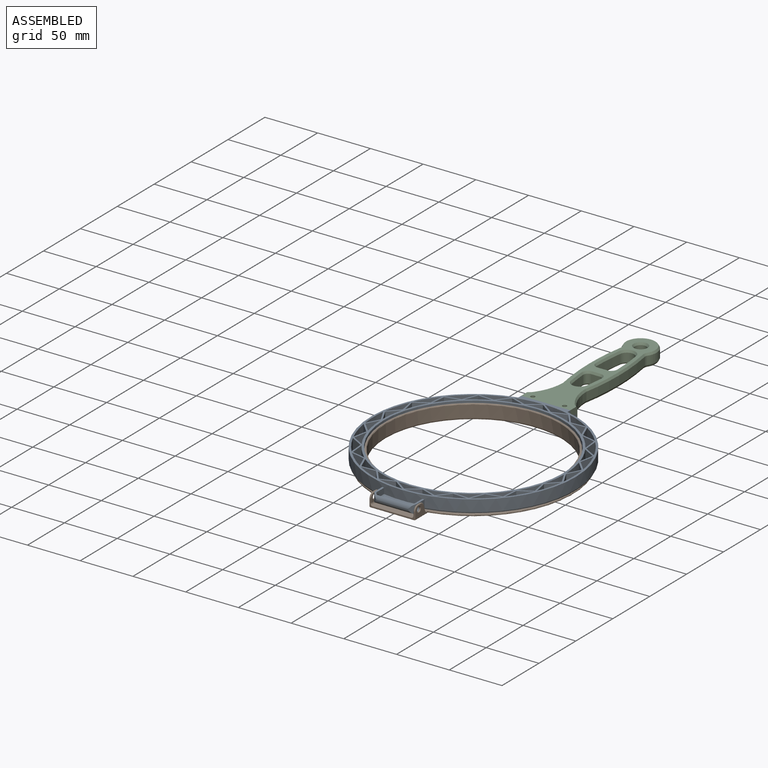
[diagram: assembled view]
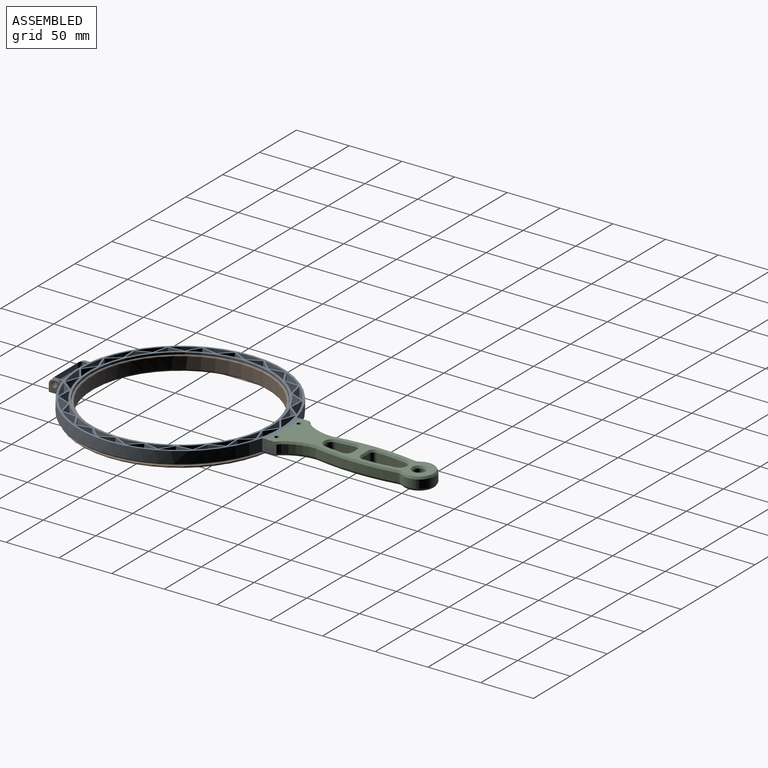
[diagram: assembled view, second angle]
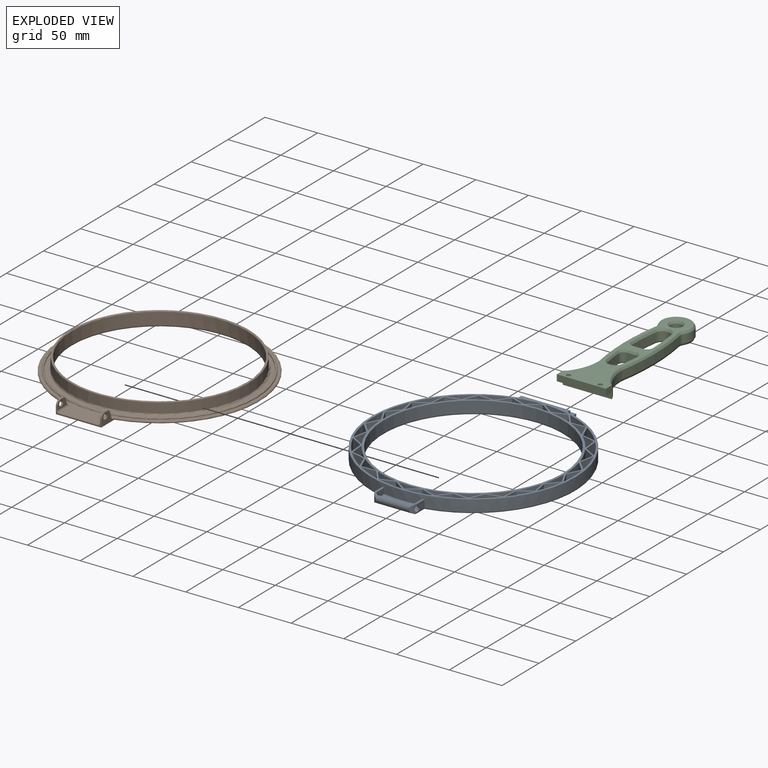
[diagram: exploded view]
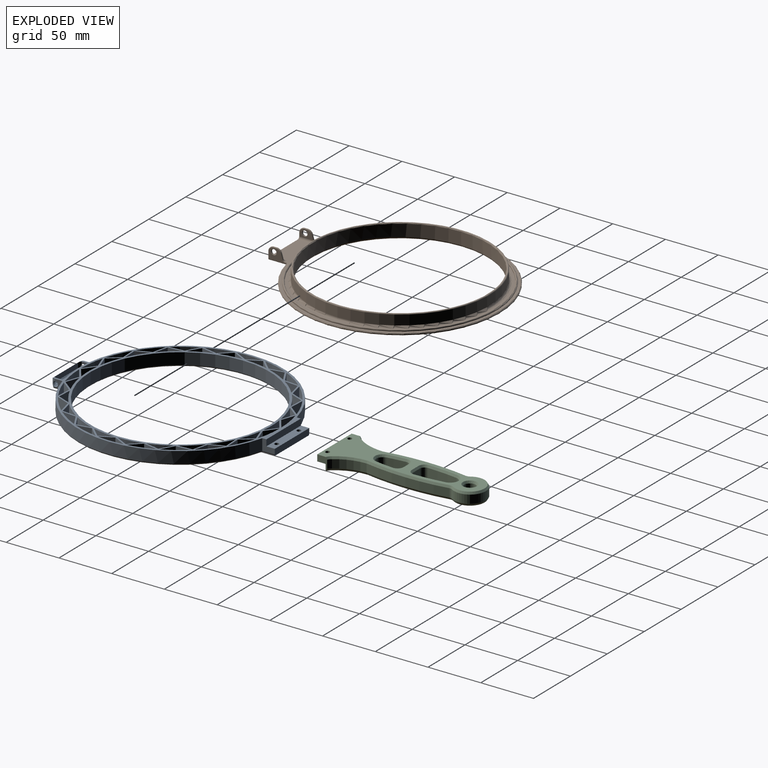
[diagram: exploded view, second angle]
ASSEMBLY  parts=3 mates=2
PART A: 220 faces, bbox 194.1x216.2x12.1 mm
  f0: plane 22.26x10.87mm, normal (0,0,1), area 90.8mm2, adj f3,f212,f213
  f1: plane 18.17x12.36mm, normal (0,0,1), area 74mm2, adj f6,f206,f211
  f2: cylinder r=87mm len=20.72mm, axis (0,0,1), area 216.5mm2, adj f5,f93,f127,f210
  f3: cylinder r=95mm len=22.26mm, axis (0,0,1), area 245.3mm2, adj f0,f93,f212,f213
  f4: plane 18.49x16.02mm, normal (0,0,1), area 90.8mm2, adj f7,f208,f209
  f5: plane 20.72x10.48mm, normal (0,0,1), area 74mm2, adj f2,f127,f210
  f6: cylinder r=87mm len=18.17mm, axis (0,0,1), area 216.5mm2, adj f1,f93,f206,f211
  f7: cylinder r=95mm len=18.49mm, axis (0,0,1), area 245.3mm2, adj f4,f93,f208,f209
  f8: plane 20.58x13.23mm, normal (0,0,1), area 90.8mm2, adj f11,f204,f205
  f9: plane 16.32x14.14mm, normal (0,0,1), area 74mm2, adj f10,f202,f207
  f10: cylinder r=87mm len=16.32mm, axis (0,0,1), area 216.5mm2, adj f9,f93,f202,f207
  f11: cylinder r=95mm len=20.58mm, axis (0,0,1), area 245.3mm2, adj f8,f93,f204,f205
  f12: plane 23.48x9.55mm, normal (0,0,1), area 90.8mm2, adj f15,f200,f201
  f13: plane 19.65x11.54mm, normal (0,0,1), area 74mm2, adj f14,f198,f203
  f14: cylinder r=87mm len=19.65mm, axis (0,0,1), area 216.5mm2, adj f13,f93,f198,f203
  f15: cylinder r=95mm len=23.48mm, axis (0,0,1), area 245.3mm2, adj f12,f93,f200,f201
  f16: plane 24.47x7.15mm, normal (0,0,1), area 90.8mm2, adj f19,f196,f197
  f17: plane 21.38x9.21mm, normal (0,0,1), area 74mm2, adj f18,f194,f199
  f18: cylinder r=87mm len=21.38mm, axis (0,0,1), area 216.5mm2, adj f17,f93,f194,f199
  f19: cylinder r=95mm len=24.47mm, axis (0,0,1), area 245.3mm2, adj f16,f93,f196,f197
  f20: plane 23.48x9.55mm, normal (0,0,1), area 90.8mm2, adj f23,f192,f193
  f21: plane 21.38x9.21mm, normal (0,0,1), area 74mm2, adj f22,f190,f195
  f22: cylinder r=87mm len=21.38mm, axis (0,0,1), area 216.5mm2, adj f21,f93,f190,f195
  f23: cylinder r=95mm len=23.48mm, axis (0,0,1), area 245.3mm2, adj f20,f93,f192,f193
  f24: plane 20.58x13.23mm, normal (0,0,1), area 90.8mm2, adj f27,f188,f189
  f25: plane 19.65x11.54mm, normal (0,0,1), area 74mm2, adj f26,f186,f191
  f26: cylinder r=87mm len=19.65mm, axis (0,0,1), area 216.5mm2, adj f25,f93,f186,f191
  f27: cylinder r=95mm len=20.58mm, axis (0,0,1), area 245.3mm2, adj f24,f93,f188,f189
  f28: plane 18.49x16.02mm, normal (0,0,1), area 90.8mm2, adj f31,f184,f185
  f29: plane 16.32x14.14mm, normal (0,0,1), area 74mm2, adj f30,f182,f187
  f30: cylinder r=87mm len=16.32mm, axis (0,0,1), area 216.5mm2, adj f29,f93,f182,f187
  f31: cylinder r=95mm len=18.49mm, axis (0,0,1), area 245.3mm2, adj f28,f93,f184,f185
  f32: plane 22.26x10.87mm, normal (0,0,1), area 90.8mm2, adj f35,f180,f181
  f33: plane 18.17x12.36mm, normal (0,0,1), area 74mm2, adj f34,f178,f183
  f34: cylinder r=87mm len=18.17mm, axis (0,0,1), area 216.5mm2, adj f33,f93,f178,f183
  f35: cylinder r=95mm len=22.26mm, axis (0,0,1), area 245.3mm2, adj f32,f93,f180,f181
  f36: plane 24.22x8.04mm, normal (0,0,1), area 90.8mm2, adj f39,f176,f177
  f37: plane 20.72x10.48mm, normal (0,0,1), area 74mm2, adj f38,f174,f179
  f38: cylinder r=87mm len=20.72mm, axis (0,0,1), area 216.5mm2, adj f37,f93,f174,f179
  f39: cylinder r=95mm len=24.22mm, axis (0,0,1), area 245.3mm2, adj f36,f93,f176,f177
  f40: plane 24.22x8.04mm, normal (0,0,1), area 90.8mm2, adj f43,f172,f173
  f41: plane 21.6x7.75mm, normal (0,0,1), area 74mm2, adj f42,f170,f175
  f42: cylinder r=87mm len=21.6mm, axis (0,0,1), area 216.5mm2, adj f41,f93,f170,f175
  f43: cylinder r=95mm len=24.22mm, axis (0,0,1), area 245.3mm2, adj f40,f93,f172,f173
  f44: plane 22.26x10.87mm, normal (0,0,1), area 90.8mm2, adj f47,f168,f169
  f45: plane 20.72x10.48mm, normal (0,0,1), area 74mm2, adj f46,f166,f171
  f46: cylinder r=87mm len=20.72mm, axis (0,0,1), area 216.5mm2, adj f45,f93,f166,f171
  f47: cylinder r=95mm len=22.26mm, axis (0,0,1), area 245.3mm2, adj f44,f93,f168,f169
  f48: plane 18.49x16.02mm, normal (0,0,1), area 90.8mm2, adj f51,f164,f165
  f49: plane 18.17x12.36mm, normal (0,0,1), area 74mm2, adj f50,f162,f167
  f50: cylinder r=87mm len=18.17mm, axis (0,0,1), area 216.5mm2, adj f49,f93,f162,f167
  f51: cylinder r=95mm len=18.49mm, axis (0,0,1), area 245.3mm2, adj f48,f93,f164,f165
  f52: plane 20.58x13.23mm, normal (0,0,1), area 90.8mm2, adj f55,f160,f161
  f53: plane 16.32x14.14mm, normal (0,0,1), area 74mm2, adj f54,f158,f163
  f54: cylinder r=87mm len=16.32mm, axis (0,0,1), area 216.5mm2, adj f53,f93,f158,f163
  f55: cylinder r=95mm len=20.58mm, axis (0,0,1), area 245.3mm2, adj f52,f93,f160,f161
  f56: plane 23.48x9.55mm, normal (0,0,1), area 90.8mm2, adj f59,f156,f157
  f57: plane 19.65x11.54mm, normal (0,0,1), area 74mm2, adj f58,f154,f159
  f58: cylinder r=87mm len=19.65mm, axis (0,0,1), area 216.5mm2, adj f57,f93,f154,f159
  f59: cylinder r=95mm len=23.48mm, axis (0,0,1), area 245.3mm2, adj f56,f93,f156,f157
  f60: plane 24.47x7.15mm, normal (0,0,1), area 90.8mm2, adj f63,f152,f153
  f61: plane 21.38x9.21mm, normal (0,0,1), area 74mm2, adj f62,f150,f155
  f62: cylinder r=87mm len=21.38mm, axis (0,0,1), area 216.5mm2, adj f61,f93,f150,f155
  f63: cylinder r=95mm len=24.47mm, axis (0,0,1), area 245.3mm2, adj f60,f93,f152,f153
  f64: plane 23.48x9.55mm, normal (0,0,1), area 90.8mm2, adj f67,f148,f149
  f65: plane 21.38x9.21mm, normal (0,0,1), area 74mm2, adj f66,f146,f151
  f66: cylinder r=87mm len=21.38mm, axis (0,0,1), area 216.5mm2, adj f65,f93,f146,f151
  f67: cylinder r=95mm len=23.48mm, axis (0,0,1), area 245.3mm2, adj f64,f93,f148,f149
  f68: plane 20.58x13.23mm, normal (0,0,1), area 90.8mm2, adj f71,f144,f145
  f69: plane 19.65x11.54mm, normal (0,0,1), area 74mm2, adj f70,f142,f147
  f70: cylinder r=87mm len=19.65mm, axis (0,0,1), area 216.5mm2, adj f69,f93,f142,f147
  f71: cylinder r=95mm len=20.58mm, axis (0,0,1), area 245.3mm2, adj f68,f93,f144,f145
  f72: plane 18.49x16.02mm, normal (0,0,1), area 90.8mm2, adj f75,f140,f141
  f73: plane 16.32x14.14mm, normal (0,0,1), area 74mm2, adj f74,f138,f143
  f74: cylinder r=87mm len=16.32mm, axis (0,0,1), area 216.5mm2, adj f73,f93,f138,f143
  f75: cylinder r=95mm len=18.49mm, axis (0,0,1), area 245.3mm2, adj f72,f93,f140,f141
  f76: plane 22.26x10.87mm, normal (0,0,1), area 90.8mm2, adj f79,f136,f137
  f77: plane 18.17x12.36mm, normal (0,0,1), area 74mm2, adj f78,f134,f139
  f78: cylinder r=87mm len=18.17mm, axis (0,0,1), area 216.5mm2, adj f77,f93,f134,f139
  f79: cylinder r=95mm len=22.26mm, axis (0,0,1), area 245.3mm2, adj f76,f93,f136,f137
  f80: plane 24.22x8.04mm, normal (0,0,1), area 90.8mm2, adj f82,f132,f133
  f81: plane 20.72x10.48mm, normal (0,0,1), area 74mm2, adj f83,f130,f135
  f82: cylinder r=95mm len=24.22mm, axis (0,0,1), area 245.3mm2, adj f80,f93,f132,f133
  f83: cylinder r=87mm len=20.72mm, axis (0,0,1), area 216.5mm2, adj f81,f93,f130,f135
  f84: plane 21.6x7.75mm, normal (0,0,1), area 74mm2, adj f96,f126,f131
  f85: plane 10.74x2mm, normal (0,0,1), area 21mm2, adj f86,f88,f97,f113,f124
  f86: plane 10.8x5.43mm, normal (1,0,0), area 45.9mm2, adj f85,f88,f102,f109,f119,f124
  f87: plane 46.65x6mm, normal (0,1,0), area 279.9mm2, adj f93,f103,f104,f105
  f88: cylinder r=97mm len=194mm, axis (0,0,1), area 6083.2mm2, adj f85,f86,f93,f97,f98,f99,f101,f103
  f89: plane 34x1.12mm, normal (0,0,1), area 38mm2, adj f102,f118,f122,f123
  f90: plane 34x6.49mm, normal (0,0,1), area 186.8mm2, adj f102,f119,f120,f121
  f91: cylinder r=85mm len=170mm, axis (0,0,1), area 5853.8mm2, adj f93,f125
  f92: plane 211.62x192.85mm, normal (0,0,-1), area 7023.2mm2, adj f106,f107,f108,f117,f125,f214,f215,f216
  f93: plane 195x194mm, normal (0,0,1), area 3327.4mm2, adj f2,f3,f6,f7,f10,f11,f14,f15
  f94: cylinder r=95mm len=24.22mm, axis (0,0,1), area 245.3mm2, adj f93,f95,f128,f129
  f95: plane 24.22x8.04mm, normal (0,0,1), area 90.8mm2, adj f94,f128,f129
  f96: cylinder r=87mm len=21.6mm, axis (0,0,1), area 216.5mm2, adj f84,f93,f126,f131
  f97: plane 9.75x7.43mm, normal (-1,0,0), area 61.8mm2, adj f85,f88,f102,f113,f219
  f98: plane 9.75x7.43mm, normal (1,0,0), area 61.8mm2, adj f88,f101,f102,f116,f216
  f99: plane 10.8x5.43mm, normal (-1,0,0), area 45.9mm2, adj f88,f101,f102,f110,f121,f124
  f100: plane 32x4.69mm, normal (0,1,0), area 150.2mm2, adj f109,f110,f122,f124
  f101: plane 10.74x2mm, normal (0,0,1), area 21mm2, adj f88,f98,f99,f116,f124
  f102: cylinder r=2.5mm len=40mm, axis (1,0,0), area 179.3mm2, adj f86,f89,f90,f97,f98,f99,f109,f110
  f103: plane 11.85x11mm, normal (-1,0,0), area 82.3mm2, adj f87,f88,f93,f105,f106,f217
  f104: plane 11.85x11mm, normal (1,0,0), area 82.3mm2, adj f87,f88,f93,f105,f106,f214
  f105: plane 46.65x8mm, normal (0,0,1), area 348.1mm2, adj f87,f103,f104,f106,f107,f108
  f106: plane 46.65x6mm, normal (0,1,0), area 279.3mm2, adj f92,f103,f104,f105,f214,f217
  f107: cylinder r=2mm len=6mm, axis (0,0,1), area 75.4mm2, adj f92,f105
  f108: cylinder r=2mm len=6mm, axis (0,0,1), area 75.4mm2, adj f92,f105
  f109: plane 6.49x2.09mm, normal (0.71,0.71,0), area 12.9mm2, adj f86,f100,f102,f122,f123,f124
  f110: plane 6.49x2.09mm, normal (-0.71,0.71,0), area 12.9mm2, adj f99,f100,f102,f118,f122,f124
  f111: plane 7.91x1.95mm, normal (0.71,-0.71,0), area 18.8mm2, adj f114,f116,f117,f124
  f112: plane 7.91x1.95mm, normal (-0.71,-0.71,0), area 18.8mm2, adj f113,f115,f117,f124
  f113: cylinder r=3.5mm len=8.34mm, axis (0,0,1), area 11.9mm2, adj f85,f97,f102,f112,f117,f124,f219
  f114: cylinder r=3.5mm len=5.19mm, axis (0,0,-1), area 7mm2, adj f111,f117,f124
  f115: cylinder r=3.5mm len=5.19mm, axis (0,0,-1), area 7mm2, adj f112,f117,f124
  f116: cylinder r=3.5mm len=8.34mm, axis (0,0,-1), area 11.9mm2, adj f98,f101,f102,f111,f117,f124,f216
  f117: cylinder r=4.5mm len=38.95mm, axis (1,0,0), area 245.1mm2, adj f92,f111,f112,f113,f114,f115,f116,f124
  f118: plane 1.16x0.61mm, normal (-0.71,0,0.71), area 0.4mm2, adj f89,f102,f110
  f119: plane 7.79x1.1mm, normal (0.71,0,0.71), area 9.4mm2, adj f86,f90,f102,f120
  f120: cone r=97mm half-angle=45deg, axis (0,0,-1), area 49.8mm2, adj f88,f90,f119,f121
  f121: plane 7.79x1.1mm, normal (-0.71,0,0.71), area 9.4mm2, adj f90,f99,f102,f120
  f122: plane 34x1mm, normal (0,0.71,0.71), area 46.7mm2, adj f89,f100,f109,f110
  f123: plane 1.16x0.61mm, normal (0.71,0,0.71), area 0.4mm2, adj f89,f102,f109
  f124: cylinder r=4.5mm len=39.72mm, axis (1,0,0), area 138.2mm2, adj f85,f86,f99,f100,f101,f109,f110,f111
  f125: cone r=85.6mm half-angle=30deg, axis (0,0,-1), area 643.1mm2, adj f91,f92
  f126: plane 10.8x10mm, normal (-0.58,-0.81,0), area 132.9mm2, adj f84,f93,f96,f131
  f127: plane 12.54x10mm, normal (0.33,-0.94,0), area 132.9mm2, adj f2,f5,f93,f210
  f128: plane 13.01x10mm, normal (-0.33,0.94,0), area 137.9mm2, adj f93,f94,f95,f129
  f129: plane 11.2x10mm, normal (0.58,0.81,0), area 137.9mm2, adj f93,f94,f95,f128
  f130: plane 12.54x10mm, normal (-0.33,-0.94,0), area 132.9mm2, adj f81,f83,f93,f135
  f131: plane 10.8x10mm, normal (0.58,-0.81,0), area 132.9mm2, adj f84,f93,f96,f126
  f132: plane 11.2x10mm, normal (-0.58,0.81,0), area 137.9mm2, adj f80,f82,f93,f133
  f133: plane 13.01x10mm, normal (0.33,0.94,0), area 137.9mm2, adj f80,f82,f93,f132
  f134: plane 13.27x10mm, normal (-0.05,-1,0), area 132.9mm2, adj f77,f78,f93,f139
  f135: plane 10.48x10mm, normal (0.79,-0.62,0), area 132.9mm2, adj f81,f83,f93,f130
  f136: plane 10.87x10mm, normal (-0.79,0.62,0), area 137.9mm2, adj f76,f79,f93,f137
  f137: plane 13.77x10mm, normal (0.05,1,0), area 137.9mm2, adj f76,f79,f93,f136
  f138: plane 12.93x10mm, normal (0.23,-0.97,0), area 132.9mm2, adj f73,f74,f93,f143
  f139: plane 12.36x10mm, normal (0.93,-0.37,0), area 132.9mm2, adj f77,f78,f93,f134
  f140: plane 12.82x10mm, normal (-0.93,0.37,0), area 137.9mm2, adj f72,f75,f93,f141
  f141: plane 13.41x10mm, normal (-0.23,0.97,0), area 137.9mm2, adj f72,f75,f93,f140
  f142: plane 11.54x10mm, normal (0.5,-0.87,0), area 132.9mm2, adj f69,f70,f93,f147
  f143: plane 13.24x10mm, normal (1,-0.09,0), area 132.9mm2, adj f73,f74,f93,f138
  f144: plane 13.73x10mm, normal (-1,0.09,0), area 137.9mm2, adj f68,f71,f93,f145
  f145: plane 11.97x10mm, normal (-0.5,0.87,0), area 137.9mm2, adj f68,f71,f93,f144
  f146: plane 10x9.59mm, normal (0.72,-0.69,0), area 132.9mm2, adj f65,f66,f93,f151
  f147: plane 13.04x10mm, normal (0.98,0.19,0), area 132.9mm2, adj f69,f70,f93,f142
  f148: plane 13.53x10mm, normal (-0.98,-0.19,0), area 137.9mm2, adj f64,f67,f93,f149
  f149: plane 10x9.94mm, normal (-0.72,0.69,0), area 137.9mm2, adj f64,f67,f93,f148
  f150: plane 11.79x10mm, normal (0.89,-0.46,0), area 132.9mm2, adj f61,f62,f93,f155
  f151: plane 11.79x10mm, normal (0.89,0.46,0), area 132.9mm2, adj f65,f66,f93,f146
  f152: plane 12.23x10mm, normal (-0.89,-0.46,0), area 137.9mm2, adj f60,f63,f93,f153
  f153: plane 12.23x10mm, normal (-0.89,0.46,0), area 137.9mm2, adj f60,f63,f93,f152
  f154: plane 13.04x10mm, normal (0.98,-0.19,0), area 132.9mm2, adj f57,f58,f93,f159
  f155: plane 10x9.59mm, normal (0.72,0.69,0), area 132.9mm2, adj f61,f62,f93,f150
  f156: plane 10x9.94mm, normal (-0.72,-0.69,0), area 137.9mm2, adj f56,f59,f93,f157
  f157: plane 13.53x10mm, normal (-0.98,0.19,0), area 137.9mm2, adj f56,f59,f93,f156
  f158: plane 13.24x10mm, normal (1,0.09,0), area 132.9mm2, adj f53,f54,f93,f163
  f159: plane 11.54x10mm, normal (0.5,0.87,0), area 132.9mm2, adj f57,f58,f93,f154
  f160: plane 11.97x10mm, normal (-0.5,-0.87,0), area 137.9mm2, adj f52,f55,f93,f161
  f161: plane 13.73x10mm, normal (-1,-0.09,0), area 137.9mm2, adj f52,f55,f93,f160
  f162: plane 12.36x10mm, normal (0.93,0.37,0), area 132.9mm2, adj f49,f50,f93,f167
  f163: plane 12.93x10mm, normal (0.23,0.97,0), area 132.9mm2, adj f53,f54,f93,f158
  f164: plane 13.41x10mm, normal (-0.23,-0.97,0), area 137.9mm2, adj f48,f51,f93,f165
  f165: plane 12.82x10mm, normal (-0.93,-0.37,0), area 137.9mm2, adj f48,f51,f93,f164
  f166: plane 10.48x10mm, normal (0.79,0.62,0), area 132.9mm2, adj f45,f46,f93,f171
  f167: plane 13.27x10mm, normal (-0.05,1,0), area 132.9mm2, adj f49,f50,f93,f162
  f168: plane 13.77x10mm, normal (0.05,-1,0), area 137.9mm2, adj f44,f47,f93,f169
  f169: plane 10.87x10mm, normal (-0.79,-0.62,0), area 137.9mm2, adj f44,f47,f93,f168
  f170: plane 10.8x10mm, normal (0.58,0.81,0), area 132.9mm2, adj f41,f42,f93,f175
  f171: plane 12.54x10mm, normal (-0.33,0.94,0), area 132.9mm2, adj f45,f46,f93,f166
  f172: plane 13.01x10mm, normal (0.33,-0.94,0), area 137.9mm2, adj f40,f43,f93,f173
  f173: plane 11.2x10mm, normal (-0.58,-0.81,0), area 137.9mm2, adj f40,f43,f93,f172
  f174: plane 12.54x10mm, normal (0.33,0.94,0), area 132.9mm2, adj f37,f38,f93,f179
  f175: plane 10.8x10mm, normal (-0.58,0.81,0), area 132.9mm2, adj f41,f42,f93,f170
  f176: plane 11.2x10mm, normal (0.58,-0.81,0), area 137.9mm2, adj f36,f39,f93,f177
  f177: plane 13.01x10mm, normal (-0.33,-0.94,0), area 137.9mm2, adj f36,f39,f93,f176
  f178: plane 13.27x10mm, normal (0.05,1,0), area 132.9mm2, adj f33,f34,f93,f183
  f179: plane 10.48x10mm, normal (-0.79,0.62,0), area 132.9mm2, adj f37,f38,f93,f174
  f180: plane 10.87x10mm, normal (0.79,-0.62,0), area 137.9mm2, adj f32,f35,f93,f181
  f181: plane 13.77x10mm, normal (-0.05,-1,0), area 137.9mm2, adj f32,f35,f93,f180
  f182: plane 12.93x10mm, normal (-0.23,0.97,0), area 132.9mm2, adj f29,f30,f93,f187
  f183: plane 12.36x10mm, normal (-0.93,0.37,0), area 132.9mm2, adj f33,f34,f93,f178
  f184: plane 12.82x10mm, normal (0.93,-0.37,0), area 137.9mm2, adj f28,f31,f93,f185
  f185: plane 13.41x10mm, normal (0.23,-0.97,0), area 137.9mm2, adj f28,f31,f93,f184
  f186: plane 11.54x10mm, normal (-0.5,0.87,0), area 132.9mm2, adj f25,f26,f93,f191
  f187: plane 13.24x10mm, normal (-1,0.09,0), area 132.9mm2, adj f29,f30,f93,f182
  f188: plane 13.73x10mm, normal (1,-0.09,0), area 137.9mm2, adj f24,f27,f93,f189
  f189: plane 11.97x10mm, normal (0.5,-0.87,0), area 137.9mm2, adj f24,f27,f93,f188
  f190: plane 10x9.59mm, normal (-0.72,0.69,0), area 132.9mm2, adj f21,f22,f93,f195
  f191: plane 13.04x10mm, normal (-0.98,-0.19,0), area 132.9mm2, adj f25,f26,f93,f186
  f192: plane 13.53x10mm, normal (0.98,0.19,0), area 137.9mm2, adj f20,f23,f93,f193
  f193: plane 10x9.94mm, normal (0.72,-0.69,0), area 137.9mm2, adj f20,f23,f93,f192
  f194: plane 11.79x10mm, normal (-0.89,0.46,0), area 132.9mm2, adj f17,f18,f93,f199
  f195: plane 11.79x10mm, normal (-0.89,-0.46,0), area 132.9mm2, adj f21,f22,f93,f190
  f196: plane 12.23x10mm, normal (0.89,0.46,0), area 137.9mm2, adj f16,f19,f93,f197
  f197: plane 12.23x10mm, normal (0.89,-0.46,0), area 137.9mm2, adj f16,f19,f93,f196
  f198: plane 13.04x10mm, normal (-0.98,0.19,0), area 132.9mm2, adj f13,f14,f93,f203
  f199: plane 10x9.59mm, normal (-0.72,-0.69,0), area 132.9mm2, adj f17,f18,f93,f194
  f200: plane 10x9.94mm, normal (0.72,0.69,0), area 137.9mm2, adj f12,f15,f93,f201
  f201: plane 13.53x10mm, normal (0.98,-0.19,0), area 137.9mm2, adj f12,f15,f93,f200
  f202: plane 13.24x10mm, normal (-1,-0.09,0), area 132.9mm2, adj f9,f10,f93,f207
  f203: plane 11.54x10mm, normal (-0.5,-0.87,0), area 132.9mm2, adj f13,f14,f93,f198
  f204: plane 11.97x10mm, normal (0.5,0.87,0), area 137.9mm2, adj f8,f11,f93,f205
  f205: plane 13.73x10mm, normal (1,0.09,0), area 137.9mm2, adj f8,f11,f93,f204
  f206: plane 12.36x10mm, normal (-0.93,-0.37,0), area 132.9mm2, adj f1,f6,f93,f211
  f207: plane 12.93x10mm, normal (-0.23,-0.97,0), area 132.9mm2, adj f9,f10,f93,f202
  f208: plane 13.41x10mm, normal (0.23,0.97,0), area 137.9mm2, adj f4,f7,f93,f209
  f209: plane 12.82x10mm, normal (0.93,0.37,0), area 137.9mm2, adj f4,f7,f93,f208
  f210: plane 10.48x10mm, normal (-0.79,-0.62,0), area 132.9mm2, adj f2,f5,f93,f127
  f211: plane 13.27x10mm, normal (0.05,-1,0), area 132.9mm2, adj f1,f6,f93,f206
  f212: plane 13.77x10mm, normal (-0.05,1,0), area 137.9mm2, adj f0,f3,f93,f213
  f213: plane 10.87x10mm, normal (0.79,0.62,0), area 137.9mm2, adj f0,f3,f93,f212
  f214: plane 12.3x1mm, normal (0.87,0,-0.5), area 13.9mm2, adj f92,f104,f106,f215
  f215: cone r=97mm half-angle=30deg, axis (0,0,1), area 301mm2, adj f88,f92,f214,f216
  f216: plane 12.09x1.03mm, normal (0.87,0,-0.5), area 13mm2, adj f92,f98,f116,f117,f215
  f217: plane 12.3x1mm, normal (-0.87,0,-0.5), area 13.9mm2, adj f92,f103,f106,f218
  f218: cone r=97mm half-angle=30deg, axis (0,0,1), area 301mm2, adj f88,f92,f217,f219
  f219: plane 12.09x1.03mm, normal (-0.87,0,-0.5), area 13mm2, adj f92,f97,f113,f117,f218
PART B: 80 faces, bbox 205.2x213x14 mm
  f0: plane 203.4x188.2mm, normal (0,0,1), area 5898.6mm2, adj f16,f49,f55,f56,f57,f58
  f1: plane 203.3x188mm, normal (0,0,-1), area 1902.8mm2, adj f19,f20,f27,f31,f33,f34,f35,f44
  f2: plane 12.57x7.3mm, normal (-1,0,0), area 54.8mm2, adj f34,f61,f62,f63,f64,f65,f76
  f3: plane 12.57x7.3mm, normal (1,0,0), area 54.8mm2, adj f33,f69,f70,f71,f72,f73,f79
  f4: plane 17.02x10.6mm, normal (1,0,0), area 100.8mm2, adj f8,f31,f35,f36,f37,f40,f43,f46
  f5: plane 2.85x0.1mm, normal (0,0,-1), area 0.3mm2, adj f22,f24,f43,f63
  f6: plane 16.47x10.6mm, normal (-1,0,0), area 100.5mm2, adj f38,f39,f41,f42,f44,f45,f48,f51
  f7: plane 2.85x0.1mm, normal (0,0,-1), area 0.3mm2, adj f21,f23,f42,f71
  f8: cylinder r=94.8mm len=189.6mm, axis (0,0,-1), area 275.7mm2, adj f4,f31,f54,f58
  f9: plane 168x168mm, normal (0,0,-1), area 210.6mm2, adj f14,f32
  f10: cylinder r=84.8mm len=169.6mm, axis (0,0,-1), area 4901.9mm2, adj f15,f32
  f11: plane 179.5x179.5mm, normal (0,0,-1), area 1636.2mm2, adj f15,f28
  f12: cylinder r=82.8mm len=165.6mm, axis (0,0,-1), area 5826.8mm2, adj f14,f16
  f13: plane 42x6.3mm, normal (0,1,0), area 29.5mm2, adj f23,f24,f48,f49,f50,f65,f66,f67
  f14: torus R=83.6mm, axis (0,0,1), area 656.1mm2, adj f9,f12
  f15: torus R=86.8mm, axis (0,0,1), area 1688.2mm2, adj f10,f11
  f16: torus R=84.8mm, axis (0,0,-1), area 1648.8mm2, adj f0,f12
  f17: plane 5.05x1.55mm, normal (0,-0.96,-0.29), area 0.6mm2, adj f19,f21,f38,f73,f74
  f18: plane 5.05x1.55mm, normal (0,-0.96,-0.29), area 0.6mm2, adj f20,f22,f37,f60,f61
  f19: cylinder r=2mm len=2.8mm, axis (1,0,0), area 3.3mm2, adj f1,f17,f41,f75
  f20: cylinder r=2mm len=2.8mm, axis (1,0,0), area 3.3mm2, adj f1,f18,f36,f59
  f21: cylinder r=5mm len=4.78mm, axis (-1,0,0), area 0.6mm2, adj f7,f17,f39,f72
  f22: cylinder r=5mm len=4.78mm, axis (-1,0,0), area 0.6mm2, adj f5,f18,f40,f62
  f23: cylinder r=5mm len=5mm, axis (1,0,0), area 0.8mm2, adj f7,f13,f45,f70
  f24: cylinder r=5mm len=5mm, axis (1,0,0), area 0.8mm2, adj f5,f13,f46,f64
  f25: cylinder r=2.5mm len=5mm, axis (1,0,0), area 17.3mm2, adj f78,f79
  f26: cylinder r=2.5mm len=5mm, axis (1,0,0), area 17.3mm2, adj f76,f77
  f27: cylinder r=91.75mm len=183.5mm, axis (0,0,1), area 288.2mm2, adj f1,f29
  f28: cylinder r=89.75mm len=179.5mm, axis (0,0,1), area 282mm2, adj f11,f30
  f29: torus R=90.75mm, axis (0,0,-1), area 901.9mm2, adj f27,f30
  f30: torus R=90.75mm, axis (0,0,-1), area 889.4mm2, adj f28,f29
  f31: torus R=94mm, axis (0,0,1), area 690.7mm2, adj f1,f4,f8,f35,f51
  f32: torus R=84mm, axis (0,0,1), area 667.3mm2, adj f9,f10
  f33: cylinder r=2mm len=15.39mm, axis (0,-1,0), area 42.9mm2, adj f1,f3,f68,f74,f75
  f34: cylinder r=2mm len=15.39mm, axis (0,1,0), area 42.9mm2, adj f1,f2,f59,f60,f66
  f35: cylinder r=0.7mm len=2.28mm, axis (0,-1,0), area 2.2mm2, adj f1,f4,f31,f36
  f36: torus R=2.7mm, axis (1,0,0), area 3.2mm2, adj f4,f20,f35,f37
  f37: cylinder r=0.7mm len=5.25mm, axis (0,0.29,-0.96), area 5.8mm2, adj f4,f18,f36,f40
  f38: cylinder r=0.7mm len=5.25mm, axis (0,-0.29,0.96), area 5.8mm2, adj f6,f17,f39,f41
  f39: torus R=4.3mm, axis (-1,0,0), area 6.6mm2, adj f6,f21,f38,f42
  f40: torus R=4.3mm, axis (1,0,0), area 6.6mm2, adj f4,f22,f37,f43
  f41: torus R=2.7mm, axis (-1,0,0), area 3.2mm2, adj f6,f19,f38,f44
  f42: cylinder r=0.7mm len=2.85mm, axis (0,1,0), area 3.1mm2, adj f6,f7,f39,f45
  f43: cylinder r=0.7mm len=2.85mm, axis (0,-1,0), area 3.1mm2, adj f4,f5,f40,f46
  f44: cylinder r=0.7mm len=1.07mm, axis (0,1,0), area 1.2mm2, adj f1,f6,f41,f47
  f45: torus R=4.3mm, axis (-1,0,0), area 8.2mm2, adj f6,f23,f42,f48
  f46: torus R=4.3mm, axis (1,0,0), area 8.2mm2, adj f4,f24,f43,f50
  f47: bspline ~1.85x1.4mm, area 1.4mm2, adj f1,f44,f51
  f48: cylinder r=0.7mm len=6.3mm, axis (0,0,1), area 6.9mm2, adj f6,f13,f45,f52
  f49: cylinder r=0.7mm len=42mm, axis (1,0,0), area 46.2mm2, adj f0,f13,f52,f53
  f50: cylinder r=0.7mm len=6.3mm, axis (0,0,1), area 6.9mm2, adj f4,f13,f46,f53
  f51: bspline ~1.78x1.71mm, area 0.3mm2, adj f6,f31,f47,f54
  f52: sphere r=0.7mm, area 1mm2, adj f48,f49,f55
  f53: sphere r=0.7mm, area 0.5mm2, adj f49,f50,f56
  f54: cylinder r=0.7mm len=0.68mm, axis (0,0,-1), area 0.5mm2, adj f6,f8,f51,f57
  f55: cylinder r=0.7mm len=16.46mm, axis (0,1,0), area 18.1mm2, adj f0,f6,f52,f57
  f56: cylinder r=0.7mm len=17.57mm, axis (0,-1,0), area 19mm2, adj f0,f4,f53,f58
  f57: torus R=1.4mm, axis (0,0,-1), area 1.4mm2, adj f0,f54,f55,f58
  f58: torus R=94.1mm, axis (0,0,-1), area 604.9mm2, adj f0,f8,f56,f57
  f59: bspline ~2.61x2.61mm, area 1.2mm2, adj f20,f34,f60
  f60: bspline ~0.91x0.79mm, area 0.8mm2, adj f18,f34,f59,f61
  f61: cylinder r=0.7mm len=4.46mm, axis (0,-0.29,0.96), area 4.9mm2, adj f2,f18,f60,f62
  f62: torus R=4.3mm, axis (-1,0,0), area 6.6mm2, adj f2,f22,f61,f63
  f63: cylinder r=0.7mm len=2.85mm, axis (0,1,0), area 3.1mm2, adj f2,f5,f62,f64
  f64: torus R=4.3mm, axis (-1,0,0), area 8.2mm2, adj f2,f24,f63,f65
  f65: cylinder r=0.7mm len=3mm, axis (0,0,1), area 3.3mm2, adj f2,f13,f64,f66
  f66: torus R=2.7mm, axis (0,1,0), area 3.9mm2, adj f13,f34,f65,f67
  f67: cylinder r=0.7mm len=36.4mm, axis (1,0,0), area 40mm2, adj f1,f13,f66,f68
  f68: torus R=2.7mm, axis (0,1,0), area 3.9mm2, adj f13,f33,f67,f69
  f69: cylinder r=0.7mm len=3mm, axis (0,0,1), area 3.3mm2, adj f3,f13,f68,f70
  f70: torus R=4.3mm, axis (1,0,0), area 8.2mm2, adj f3,f23,f69,f71
  f71: cylinder r=0.7mm len=2.85mm, axis (0,-1,0), area 3.1mm2, adj f3,f7,f70,f72
  f72: torus R=4.3mm, axis (1,0,0), area 6.6mm2, adj f3,f21,f71,f73
  f73: cylinder r=0.7mm len=4.46mm, axis (0,0.29,-0.96), area 4.9mm2, adj f3,f17,f72,f74
  f74: bspline ~0.91x0.79mm, area 0.8mm2, adj f17,f33,f73,f75
  f75: bspline ~2.61x2.61mm, area 1.2mm2, adj f19,f33,f74
  f76: torus R=2.7mm, axis (-1,0,0), area 5.1mm2, adj f2,f26
  f77: torus R=2.7mm, axis (1,0,0), area 5.1mm2, adj f4,f26
  f78: torus R=2.7mm, axis (-1,0,0), area 5.1mm2, adj f6,f25
  f79: torus R=2.7mm, axis (1,0,0), area 5.1mm2, adj f3,f25
PART C: 76 faces, bbox 47.7x143.6x12 mm
  f0: cylinder r=2mm len=6mm, axis (0,0,-1), area 75.4mm2, adj f29,f31
  f1: plane 134.41x46.65mm, normal (0,0,-1), area 1906.9mm2, adj f4,f6,f30,f32,f33,f34,f35,f36
  f2: cylinder r=2mm len=6mm, axis (0,0,-1), area 38mm2, adj f24,f29,f31
  f3: cylinder r=10mm len=8mm, axis (0,0,-1), area 31mm2, adj f4,f25,f50,f54
  f4: plane 12x9.46mm, normal (-1,0,0), area 62.8mm2, adj f1,f3,f5,f29,f30,f31,f50,f54
  f5: plane 46.65x6mm, normal (0,-1,0), area 279.9mm2, adj f4,f6,f29,f31
  f6: plane 12x9.44mm, normal (1,0,0), area 62.6mm2, adj f1,f5,f7,f29,f30,f31,f45,f58
  f7: cylinder r=10mm len=8mm, axis (0,0,-1), area 30.9mm2, adj f6,f8,f45,f58
  f8: cylinder r=43.84mm len=26.58mm, axis (0,0,-1), area 228.4mm2, adj f7,f9,f46,f60
  f9: cylinder r=223.59mm len=78.26mm, axis (0,0,-1), area 629.3mm2, adj f8,f10,f47,f62
  f10: cylinder r=5mm len=8mm, axis (0,0,-1), area 29.9mm2, adj f9,f11,f48,f61
  f11: cylinder r=15mm len=30mm, axis (0,0,-1), area 514.9mm2, adj f10,f12,f49,f59
  f12: cylinder r=5mm len=8mm, axis (0,0,-1), area 29.8mm2, adj f11,f13,f51,f57
  f13: cylinder r=223.59mm len=78.29mm, axis (0,0,-1), area 629.6mm2, adj f12,f25,f53,f56
  f14: cylinder r=217.59mm len=28.51mm, axis (0,0,-1), area 229mm2, adj f15,f27,f35,f66
  f15: cylinder r=4.5mm len=8mm, axis (0,0,-1), area 57.1mm2, adj f14,f16,f33,f64
  f16: plane 9.23x8mm, normal (0,1,0), area 73.9mm2, adj f15,f17,f32,f63
  f17: cylinder r=4.5mm len=8mm, axis (0,0,-1), area 57.1mm2, adj f16,f18,f34,f65
  f18: cylinder r=217.59mm len=28.51mm, axis (0,0,-1), area 229mm2, adj f17,f27,f36,f67
  f19: cylinder r=217.59mm len=17.32mm, axis (0,0,-1), area 139.5mm2, adj f20,f28,f39,f70
  f20: cylinder r=6.52mm len=12.89mm, axis (0,0,-1), area 147.5mm2, adj f19,f21,f38,f69
  f21: cylinder r=217.59mm len=17.32mm, axis (0,0,-1), area 139.5mm2, adj f20,f22,f40,f71
  f22: cylinder r=4.5mm len=8mm, axis (0,0,-1), area 59.3mm2, adj f21,f23,f42,f73
  f23: plane 8x8mm, normal (0,-1,0), area 64mm2, adj f22,f28,f43,f74
  f24: cylinder r=2mm len=6mm, axis (0,0,-1), area 38mm2, adj f2,f29,f31
  f25: cylinder r=43.84mm len=26.55mm, axis (0,0,-1), area 228.1mm2, adj f3,f13,f52,f55
  f26: cylinder r=5.5mm len=11mm, axis (0,0,-1), area 276.5mm2, adj f44,f75
  f27: cylinder r=6.91mm len=13.66mm, axis (0,0,-1), area 157.5mm2, adj f14,f18,f37,f68
  f28: cylinder r=4.5mm len=8mm, axis (0,0,-1), area 59.3mm2, adj f19,f23,f41,f72
  f29: plane 142.41x46.65mm, normal (0,0,1), area 2458.4mm2, adj f0,f2,f4,f5,f6,f24,f54,f55
  f30: plane 46.65x6mm, normal (0,-1,0), area 279.9mm2, adj f1,f4,f6,f31
  f31: plane 46.65x8mm, normal (0,0,-1), area 347.9mm2, adj f0,f2,f4,f5,f6,f24,f30
  f32: cylinder r=2mm len=9.23mm, axis (-1,0,0), area 29mm2, adj f1,f16,f33,f34
  f33: torus R=6.5mm, axis (0,0,1), area 26mm2, adj f1,f15,f32,f35
  f34: torus R=6.5mm, axis (0,0,1), area 26mm2, adj f1,f17,f32,f36
  f35: torus R=219.59mm, axis (0,0,1), area 90.2mm2, adj f1,f14,f33,f37
  f36: torus R=219.59mm, axis (0,0,1), area 90.2mm2, adj f1,f18,f34,f37
  f37: torus R=8.91mm, axis (0,0,1), area 68.3mm2, adj f1,f27,f35,f36
  f38: torus R=8.52mm, axis (0,0,1), area 64.4mm2, adj f1,f20,f39,f40
  f39: torus R=219.59mm, axis (0,0,1), area 55mm2, adj f1,f19,f38,f41
  f40: torus R=219.59mm, axis (0,0,1), area 55mm2, adj f1,f21,f38,f42
  f41: torus R=6.5mm, axis (0,0,1), area 27.1mm2, adj f1,f28,f39,f43
  f42: torus R=6.5mm, axis (0,0,1), area 27.1mm2, adj f1,f22,f40,f43
  f43: cylinder r=2mm len=8mm, axis (1,0,0), area 25.1mm2, adj f1,f23,f41,f42
  f44: torus R=7.5mm, axis (0,0,1), area 122.9mm2, adj f1,f26
  f45: cone r=10mm half-angle=30deg, axis (0,0,-1), area 10.2mm2, adj f1,f6,f7,f46
  f46: cone r=43.84mm half-angle=30deg, axis (0,0,-1), area 66.9mm2, adj f1,f8,f45,f47
  f47: cone r=223.59mm half-angle=30deg, axis (0,0,1), area 181.3mm2, adj f1,f9,f46,f48
  f48: cone r=5mm half-angle=30deg, axis (0,0,-1), area 9.6mm2, adj f1,f10,f47,f49
  f49: cone r=15mm half-angle=30deg, axis (0,0,1), area 142.9mm2, adj f1,f11,f48,f51
  f50: cone r=10mm half-angle=30deg, axis (0,0,-1), area 10.2mm2, adj f1,f3,f4,f52
  f51: cone r=5mm half-angle=30deg, axis (0,0,-1), area 9.6mm2, adj f1,f12,f49,f53
  f52: cone r=43.84mm half-angle=30deg, axis (0,0,-1), area 66.8mm2, adj f1,f25,f50,f53
  f53: cone r=223.59mm half-angle=30deg, axis (0,0,1), area 181.4mm2, adj f1,f13,f51,f52
  f54: cone r=11.15mm half-angle=30deg, axis (0,0,1), area 10.2mm2, adj f3,f4,f29,f55
  f55: cone r=45mm half-angle=30deg, axis (0,0,1), area 66.8mm2, adj f25,f29,f54,f56
  f56: cone r=222.44mm half-angle=30deg, axis (0,0,-1), area 181.4mm2, adj f13,f29,f55,f57
  f57: cone r=6.15mm half-angle=30deg, axis (0,0,1), area 9.6mm2, adj f12,f29,f56,f59
  f58: cone r=11.15mm half-angle=30deg, axis (0,0,1), area 10.2mm2, adj f6,f7,f29,f60
  f59: cone r=13.85mm half-angle=30deg, axis (0,0,-1), area 142.9mm2, adj f11,f29,f57,f61
  f60: cone r=45mm half-angle=30deg, axis (0,0,1), area 66.9mm2, adj f8,f29,f58,f62
  f61: cone r=6.15mm half-angle=30deg, axis (0,0,1), area 9.6mm2, adj f10,f29,f59,f62
  f62: cone r=222.44mm half-angle=30deg, axis (0,0,-1), area 181.3mm2, adj f9,f29,f60,f61
  f63: plane 9.23x2mm, normal (0,0.87,0.5), area 21.3mm2, adj f16,f29,f64,f65
  f64: cone r=4.5mm half-angle=30deg, axis (0,0,1), area 18.6mm2, adj f15,f29,f63,f66
  f65: cone r=4.5mm half-angle=30deg, axis (0,0,1), area 18.6mm2, adj f17,f29,f63,f67
  f66: cone r=217.59mm half-angle=30deg, axis (0,0,1), area 66.3mm2, adj f14,f29,f64,f68
  f67: cone r=217.59mm half-angle=30deg, axis (0,0,1), area 66.3mm2, adj f18,f29,f65,f68
  f68: cone r=6.91mm half-angle=30deg, axis (0,0,1), area 49.3mm2, adj f27,f29,f66,f67
  f69: cone r=6.52mm half-angle=30deg, axis (0,0,1), area 46.3mm2, adj f20,f29,f70,f71
  f70: cone r=217.59mm half-angle=30deg, axis (0,0,1), area 40.4mm2, adj f19,f29,f69,f72
  f71: cone r=217.59mm half-angle=30deg, axis (0,0,1), area 40.4mm2, adj f21,f29,f69,f73
  f72: cone r=4.5mm half-angle=30deg, axis (0,0,1), area 19.3mm2, adj f28,f29,f70,f74
  f73: cone r=4.5mm half-angle=30deg, axis (0,0,1), area 19.3mm2, adj f22,f29,f71,f74
  f74: plane 8x2mm, normal (0,-0.87,0.5), area 18.5mm2, adj f23,f29,f72,f73
  f75: cone r=6.65mm half-angle=30deg, axis (0,0,1), area 88.2mm2, adj f26,f29
PLACE A t=(36.82,-34.21,18.25)mm
PLACE B rot(axis=(1,0,0),180deg) t=(36.62,-34.21,12.36)mm
PLACE C t=(36.82,-34.21,18.25)mm
MATE cylindrical B.f25 <-> A.f102  axis (-1,0,0) through (56.82,-138.71,22.25)mm
MATE cylindrical C.f2 <-> A.f107  axis (0,0,-1) through (51.82,67.79,24.25)mm
